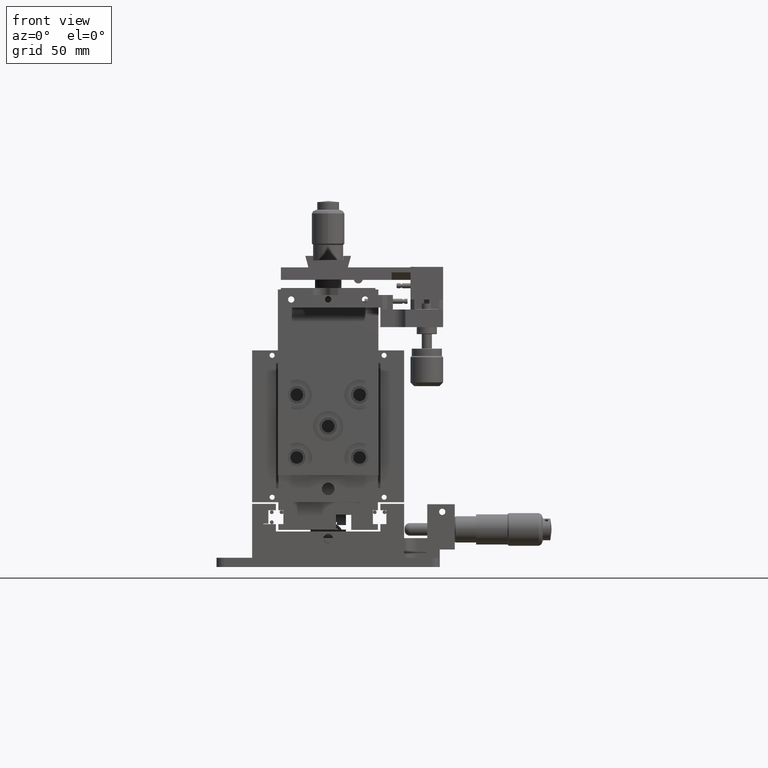
[diagram: clean part render]
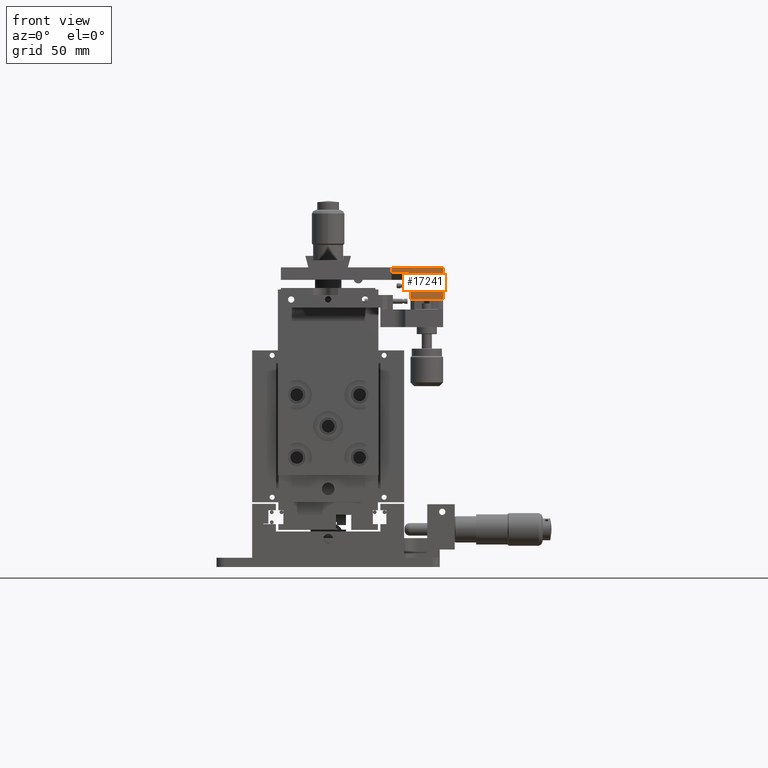
[diagram: same view with one face highlighted and labeled with its STEP entity id]
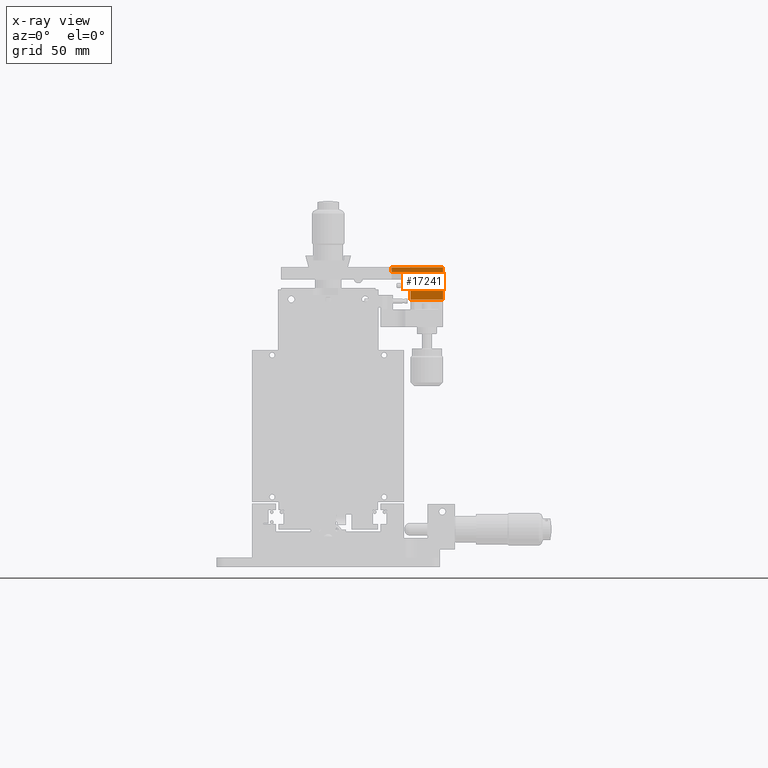
[diagram: x-ray of the same camera — body ghosted, the highlighted face saturated]
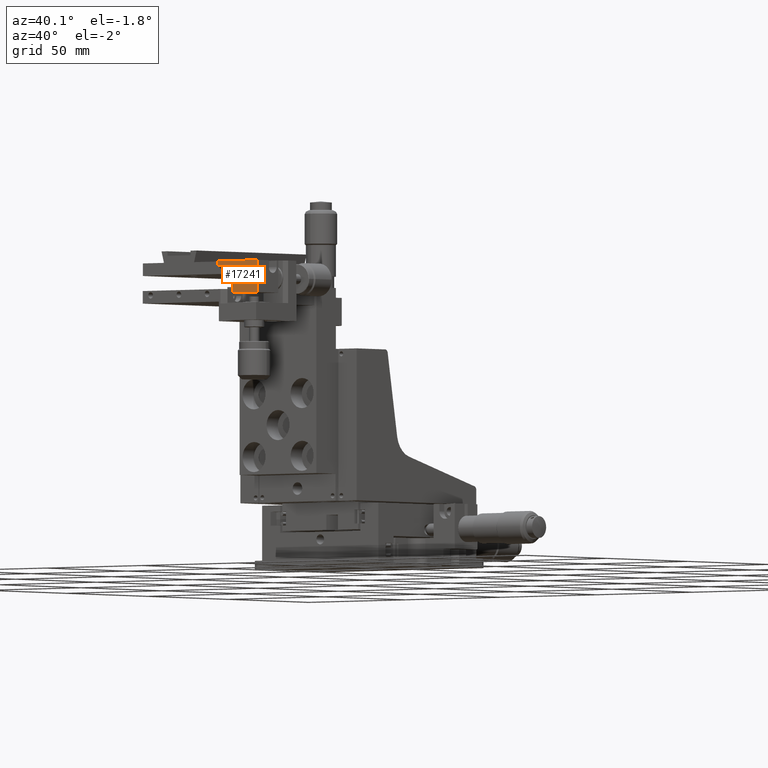
[diagram: same view with one face highlighted and labeled with its STEP entity id]
A machine part, front view. The second image highlights one B-rep face of the part: STEP entity #17241.
The next image is the same camera in x-ray: the body ghosted, the highlighted face saturated — about 0% of this face is hidden behind the body in this view.
A second angle (auxiliary view) of the same face is appended — the face is thin or edge-on in the first view.
In plain terms, the highlighted planar face has unit normal (-0, 1, -0).
Its self-contained STEP definition (entity closure, byte-faithful):
#4552 = CARTESIAN_POINT ( 'NONE',  ( 25.30000000000298900, -123.5499999999994000, 119.3500000000007500 ) ) ;
#4553 = DIRECTION ( 'NONE',  ( -3.240871623354245600E-016, -2.773832194546378500E-015, -1.000000000000000000 ) ) ;
#4554 = VECTOR ( 'NONE', #4553, 1000.000000000000000 ) ;
#4555 = CARTESIAN_POINT ( 'NONE',  ( 25.30000000000298900, -123.5499999999994000, 119.3500000000007500 ) ) ;
#4556 = LINE ( 'NONE', #4555, #4554 ) ;
#4559 = CARTESIAN_POINT ( 'NONE',  ( 32.80000000000299600, -123.5499999999992200, 117.3500000000007300 ) ) ;
#4595 = DIRECTION ( 'NONE',  ( -1.000000000000000000, -2.469026196398216400E-014, 3.240871623354315600E-016 ) ) ;
#4605 = VECTOR ( 'NONE', #4595, 1000.000000000000000 ) ;
#4606 = CARTESIAN_POINT ( 'NONE',  ( 38.80000000000294600, -123.5499999999990700, 117.3500000000007300 ) ) ;
#4607 = LINE ( 'NONE', #4606, #4605 ) ;
#4611 = FACE_OUTER_BOUND ( 'NONE', #17191, .T. ) ;
#4613 = AXIS2_PLACEMENT_3D ( 'NONE', #4661, #4654, #4653 ) ;
#4636 = DIRECTION ( 'NONE',  ( -3.240871623354245600E-016, -2.773832194546378500E-015, -1.000000000000000000 ) ) ;
#4637 = CARTESIAN_POINT ( 'NONE',  ( 45.80000000000298900, -123.5499999999989000, 119.3500000000007300 ) ) ;
#4641 = CARTESIAN_POINT ( 'NONE',  ( 45.80000000000298900, -123.5499999999989300, 106.5500000000007200 ) ) ;
#4642 = CARTESIAN_POINT ( 'NONE',  ( 25.30000000000298900, -123.5499999999994100, 117.3500000000007500 ) ) ;
#4647 = CARTESIAN_POINT ( 'NONE',  ( 45.80000000000298900, -123.5499999999989000, 119.3500000000007300 ) ) ;
#4648 = CARTESIAN_POINT ( 'NONE',  ( 25.30000000000298500, -123.5499999999994400, 106.5500000000007400 ) ) ;
#4649 = LINE ( 'NONE', #4648, #4703 ) ;
#4650 = DIRECTION ( 'NONE',  ( 3.240871623354245600E-016, 2.773832194546378500E-015, 1.000000000000000000 ) ) ;
#4651 = VECTOR ( 'NONE', #4650, 1000.000000000000000 ) ;
#4652 = CARTESIAN_POINT ( 'NONE',  ( 32.80000000000299600, -123.5499999999992400, 106.5500000000007400 ) ) ;
#4653 = DIRECTION ( 'NONE',  ( -1.000000000000000000, -2.452102064925271800E-014, 3.240871623354310200E-016 ) ) ;
#4654 = DIRECTION ( 'NONE',  ( -2.452102064925271800E-014, 1.000000000000000000, -2.773832194546371000E-015 ) ) ;
#4655 = LINE ( 'NONE', #4652, #4651 ) ;
#4656 = PLANE ( 'NONE',  #4613 ) ;
#4660 = LINE ( 'NONE', #4637, #4699 ) ;
#4661 = CARTESIAN_POINT ( 'NONE',  ( 25.30000000000298900, -123.5499999999994000, 119.3500000000007500 ) ) ;
#4680 = CARTESIAN_POINT ( 'NONE',  ( 32.80000000000299600, -123.5499999999992400, 106.5500000000007400 ) ) ;
#4691 = DIRECTION ( 'NONE',  ( 1.000000000000000000, 2.452102064925272200E-014, -3.240871623354310700E-016 ) ) ;
#4692 = VECTOR ( 'NONE', #4691, 1000.000000000000000 ) ;
#4693 = CARTESIAN_POINT ( 'NONE',  ( 25.30000000000298900, -123.5499999999994000, 119.3500000000007500 ) ) ;
#4698 = LINE ( 'NONE', #4693, #4692 ) ;
#4699 = VECTOR ( 'NONE', #4636, 1000.000000000000000 ) ;
#4702 = DIRECTION ( 'NONE',  ( 1.000000000000000000, 2.452102064925272200E-014, -3.240871623354310700E-016 ) ) ;
#4703 = VECTOR ( 'NONE', #4702, 1000.000000000000000 ) ;
#17190 = EDGE_CURVE ( 'NONE', #17195, #17271, #4556, .T. ) ;
#17191 = EDGE_LOOP ( 'NONE', ( #17244, #17257, #17249, #17252, #17255, #17248 ) ) ;
#17194 = VERTEX_POINT ( 'NONE', #4559 ) ;
#17195 = VERTEX_POINT ( 'NONE', #4552 ) ;
#17206 = EDGE_CURVE ( 'NONE', #17194, #17271, #4607, .T. ) ;
#17241 = ADVANCED_FACE ( 'NONE', ( #4611 ), #4656, .F. ) ;
#17242 = EDGE_CURVE ( 'NONE', #17268, #17194, #4655, .T. ) ;
#17244 = ORIENTED_EDGE ( 'NONE', *, *, #17206, .F. ) ;
#17245 = VERTEX_POINT ( 'NONE', #4647 ) ;
#17246 = VERTEX_POINT ( 'NONE', #4641 ) ;
#17247 = EDGE_CURVE ( 'NONE', #17268, #17246, #4649, .T. ) ;
#17248 = ORIENTED_EDGE ( 'NONE', *, *, #17190, .T. ) ;
#17249 = ORIENTED_EDGE ( 'NONE', *, *, #17247, .T. ) ;
#17250 = EDGE_CURVE ( 'NONE', #17245, #17246, #4660, .T. ) ;
#17252 = ORIENTED_EDGE ( 'NONE', *, *, #17250, .F. ) ;
#17253 = EDGE_CURVE ( 'NONE', #17195, #17245, #4698, .T. ) ;
#17255 = ORIENTED_EDGE ( 'NONE', *, *, #17253, .F. ) ;
#17257 = ORIENTED_EDGE ( 'NONE', *, *, #17242, .F. ) ;
#17268 = VERTEX_POINT ( 'NONE', #4680 ) ;
#17271 = VERTEX_POINT ( 'NONE', #4642 ) ;